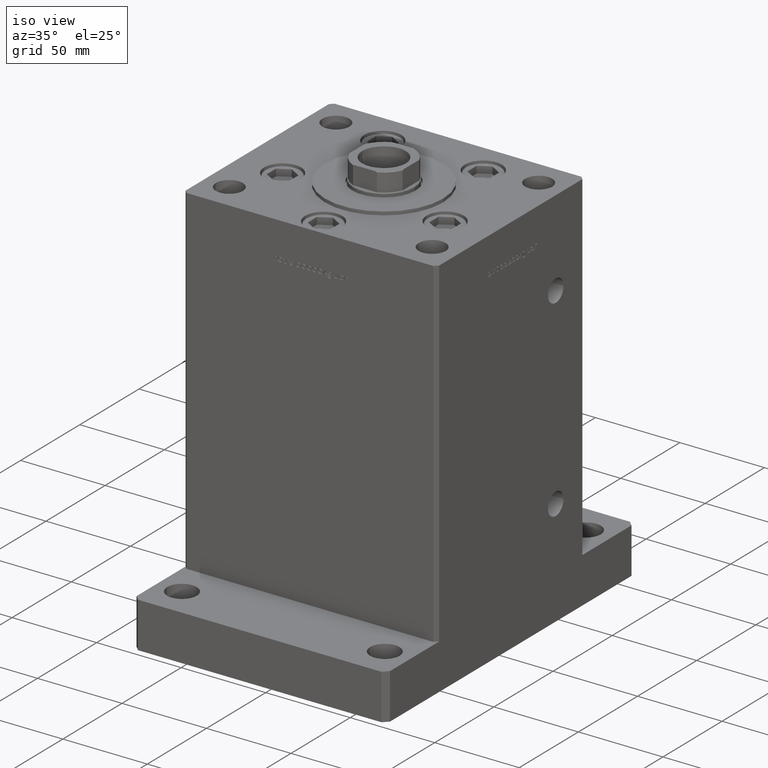
[diagram: clean part render]
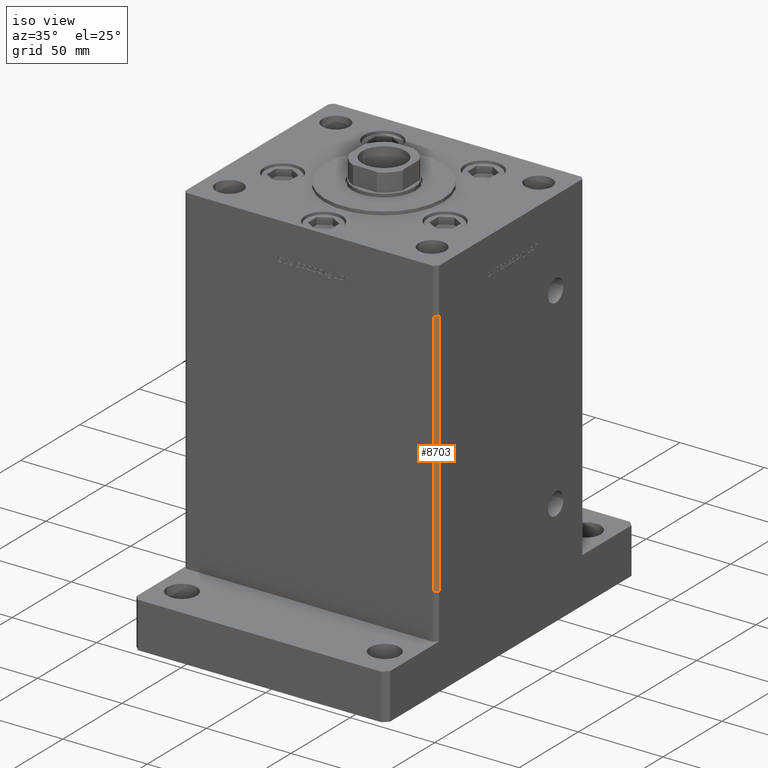
[diagram: same view with one face highlighted and labeled with its STEP entity id]
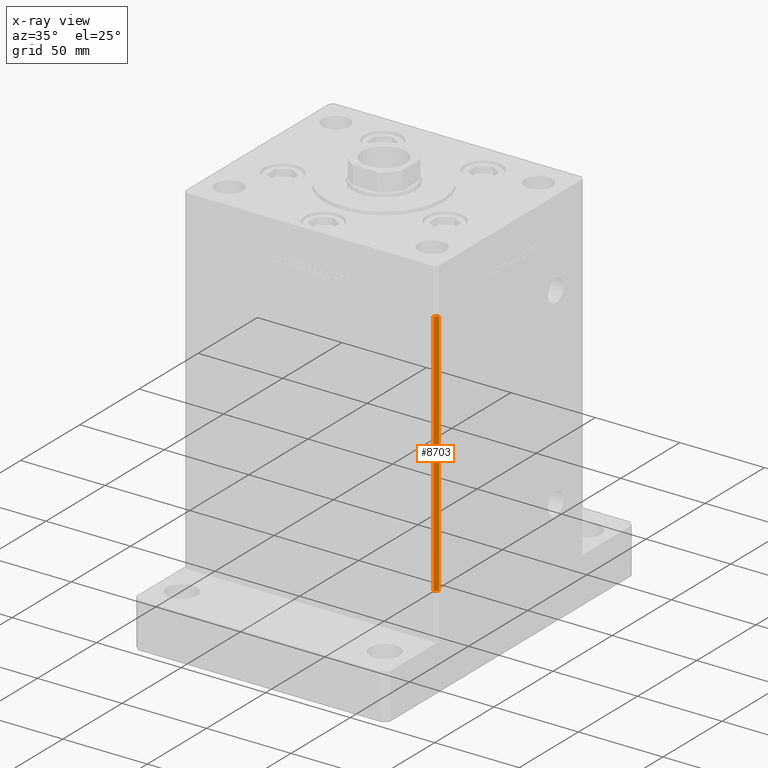
[diagram: x-ray of the same camera — body ghosted, the highlighted face saturated]
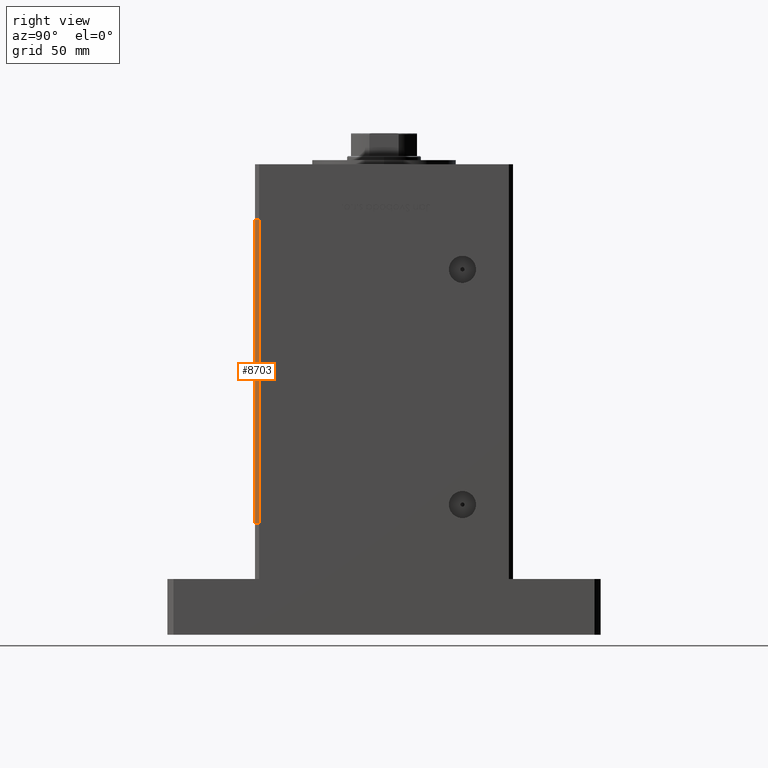
[diagram: same view with one face highlighted and labeled with its STEP entity id]
A machine part, iso view. The second image highlights one B-rep face of the part: STEP entity #8703.
The next image is the same camera in x-ray: the body ghosted, the highlighted face saturated — about 0% of this face is hidden behind the body in this view.
A second angle (right view) of the same face is appended — the face is thin or edge-on in the first view.
In plain terms, the highlighted planar face has unit normal (0.7071, -0.7071, 0).
Its self-contained STEP definition (entity closure, byte-faithful):
#388 = CARTESIAN_POINT ( 'NONE',  ( 72.99999999999998579, -62.50000000000000000, 0.000000000000000000 ) ) ;
#2455 = CARTESIAN_POINT ( 'NONE',  ( 74.99999999999998579, -60.50000000000000000, 147.0000000000000000 ) ) ;
#4021 = VERTEX_POINT ( 'NONE', #2455 ) ;
#4479 = VERTEX_POINT ( 'NONE', #388 ) ;
#4581 = VECTOR ( 'NONE', #36364, 1000.000000000000000 ) ;
#7128 = ORIENTED_EDGE ( 'NONE', *, *, #31291, .T. ) ;
#8703 = ADVANCED_FACE ( 'NONE', ( #45465 ), #24821, .T. ) ;
#9864 = LINE ( 'NONE', #51136, #4581 ) ;
#11167 = LINE ( 'NONE', #52439, #43835 ) ;
#13250 = DIRECTION ( 'NONE',  ( -0.7071067811865474617, -0.7071067811865474617, 0.000000000000000000 ) ) ;
#14646 = VERTEX_POINT ( 'NONE', #31439 ) ;
#16807 = LINE ( 'NONE', #41751, #24426 ) ;
#16871 = VERTEX_POINT ( 'NONE', #43481 ) ;
#20364 = CARTESIAN_POINT ( 'NONE',  ( 74.99999999999998579, -60.50000000000000000, 147.0000000000000000 ) ) ;
#20763 = DIRECTION ( 'NONE',  ( 0.7071067811865475727, -0.7071067811865475727, 0.000000000000000000 ) ) ;
#21709 = AXIS2_PLACEMENT_3D ( 'NONE', #41379, #20763, #37299 ) ;
#22268 = EDGE_CURVE ( 'NONE', #4021, #14646, #40971, .T. ) ;
#22661 = ORIENTED_EDGE ( 'NONE', *, *, #51853, .F. ) ;
#23922 = DIRECTION ( 'NONE',  ( -0.000000000000000000, -0.000000000000000000, -1.000000000000000000 ) ) ;
#24426 = VECTOR ( 'NONE', #13250, 1000.000000000000114 ) ;
#24821 = PLANE ( 'NONE',  #21709 ) ;
#24882 = EDGE_LOOP ( 'NONE', ( #37562, #22661, #25772, #7128 ) ) ;
#25772 = ORIENTED_EDGE ( 'NONE', *, *, #22268, .T. ) ;
#31291 = EDGE_CURVE ( 'NONE', #14646, #4479, #11167, .T. ) ;
#31439 = CARTESIAN_POINT ( 'NONE',  ( 72.99999999999998579, -62.50000000000000000, 147.0000000000000000 ) ) ;
#36364 = DIRECTION ( 'NONE',  ( -0.000000000000000000, -0.000000000000000000, -1.000000000000000000 ) ) ;
#37299 = DIRECTION ( 'NONE',  ( 0.7071067811865474617, 0.7071067811865474617, 0.000000000000000000 ) ) ;
#37562 = ORIENTED_EDGE ( 'NONE', *, *, #45983, .F. ) ;
#40971 = LINE ( 'NONE', #20364, #51486 ) ;
#41379 = CARTESIAN_POINT ( 'NONE',  ( 74.99999999999998579, -60.50000000000000000, 147.0000000000000000 ) ) ;
#41751 = CARTESIAN_POINT ( 'NONE',  ( 74.99999999999998579, -60.50000000000000000, 0.000000000000000000 ) ) ;
#43481 = CARTESIAN_POINT ( 'NONE',  ( 74.99999999999998579, -60.50000000000000000, 0.000000000000000000 ) ) ;
#43835 = VECTOR ( 'NONE', #23922, 1000.000000000000000 ) ;
#45465 = FACE_OUTER_BOUND ( 'NONE', #24882, .T. ) ;
#45983 = EDGE_CURVE ( 'NONE', #16871, #4479, #16807, .T. ) ;
#51136 = CARTESIAN_POINT ( 'NONE',  ( 74.99999999999998579, -60.50000000000000000, 147.0000000000000000 ) ) ;
#51486 = VECTOR ( 'NONE', #53476, 1000.000000000000114 ) ;
#51853 = EDGE_CURVE ( 'NONE', #4021, #16871, #9864, .T. ) ;
#52439 = CARTESIAN_POINT ( 'NONE',  ( 72.99999999999998579, -62.50000000000000000, 147.0000000000000000 ) ) ;
#53476 = DIRECTION ( 'NONE',  ( -0.7071067811865474617, -0.7071067811865474617, 0.000000000000000000 ) ) ;